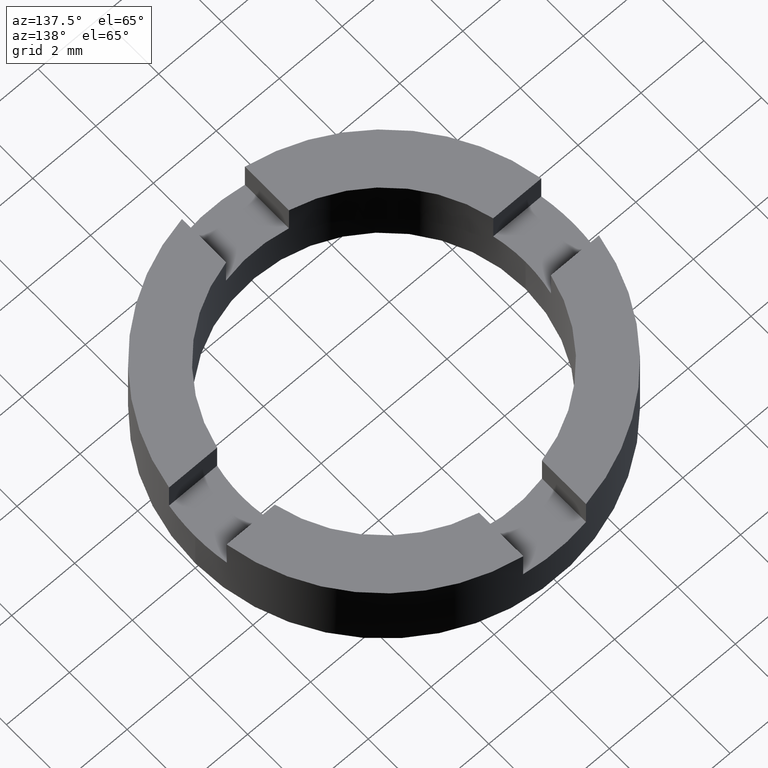
[diagram: clean part render]
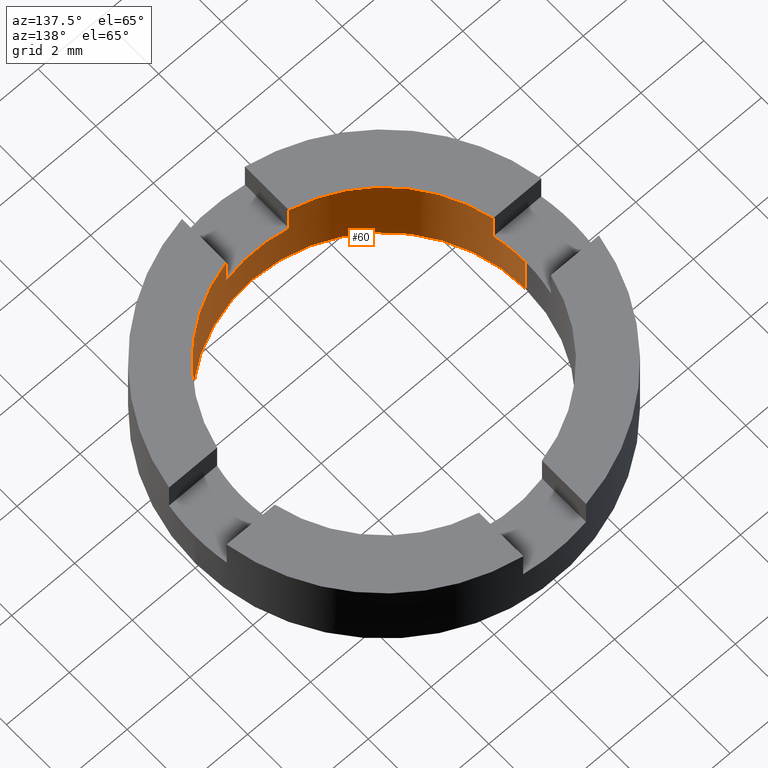
[diagram: same view with one face highlighted and labeled with its STEP entity id]
A machine part, auxiliary view. The second image highlights one B-rep face of the part: STEP entity #60.
In plain terms, the highlighted cylindrical surface (partial cylindrical patch) has radius 4.5 mm, axis along (-0, -0, -1).
Its self-contained STEP definition (entity closure, byte-faithful):
#3 = ORIENTED_EDGE ( 'NONE', *, *, #92, .F. ) ;
#7 = CARTESIAN_POINT ( 'NONE',  ( -4.500000000000000000, 0.000000000000000000, 1.500000000000000000 ) ) ;
#16 = DIRECTION ( 'NONE',  ( 0.000000000000000000, 0.000000000000000000, 1.000000000000000000 ) ) ;
#32 = EDGE_CURVE ( 'NONE', #618, #647, #751, .T. ) ;
#43 = VERTEX_POINT ( 'NONE', #605 ) ;
#46 = CARTESIAN_POINT ( 'NONE',  ( -0.9999999999999986677, -4.387482193696060406, 1.500000000000000000 ) ) ;
#57 = EDGE_CURVE ( 'NONE', #355, #654, #502, .T. ) ;
#60 = ADVANCED_FACE ( 'NONE', ( #532 ), #512, .F. ) ;
#72 = LINE ( 'NONE', #424, #365 ) ;
#85 = ORIENTED_EDGE ( 'NONE', *, *, #112, .T. ) ;
#92 = EDGE_CURVE ( 'NONE', #497, #537, #763, .T. ) ;
#96 = ORIENTED_EDGE ( 'NONE', *, *, #196, .T. ) ;
#98 = ORIENTED_EDGE ( 'NONE', *, *, #720, .F. ) ;
#109 = ORIENTED_EDGE ( 'NONE', *, *, #146, .F. ) ;
#112 = EDGE_CURVE ( 'NONE', #124, #647, #500, .T. ) ;
#120 = EDGE_LOOP ( 'NONE', ( #98, #305, #312, #630, #3, #261, #85, #290, #553, #202, #96, #109 ) ) ;
#121 = CARTESIAN_POINT ( 'NONE',  ( 4.500000000000000000, 5.510910596163088569E-16, 1.500000000000000000 ) ) ;
#124 = VERTEX_POINT ( 'NONE', #659 ) ;
#134 = EDGE_CURVE ( 'NONE', #43, #654, #771, .T. ) ;
#135 = CARTESIAN_POINT ( 'NONE',  ( -0.9999999999999986677, -4.387482193696060406, 1.500000000000000000 ) ) ;
#136 = DIRECTION ( 'NONE',  ( 0.000000000000000000, -0.000000000000000000, -1.000000000000000000 ) ) ;
#146 = EDGE_CURVE ( 'NONE', #523, #739, #777, .T. ) ;
#167 = DIRECTION ( 'NONE',  ( 0.000000000000000000, 0.000000000000000000, 1.000000000000000000 ) ) ;
#169 = DIRECTION ( 'NONE',  ( 1.000000000000000000, 0.000000000000000000, 0.000000000000000000 ) ) ;
#171 = CARTESIAN_POINT ( 'NONE',  ( 4.387482193696056854, -1.000000000000017319, 2.500000000000000000 ) ) ;
#177 = DIRECTION ( 'NONE',  ( 0.000000000000000000, -0.000000000000000000, -1.000000000000000000 ) ) ;
#180 = EDGE_CURVE ( 'NONE', #568, #637, #522, .T. ) ;
#188 = CARTESIAN_POINT ( 'NONE',  ( 0.000000000000000000, 0.000000000000000000, 1.500000000000000000 ) ) ;
#196 = EDGE_CURVE ( 'NONE', #637, #739, #507, .T. ) ;
#198 = EDGE_CURVE ( 'NONE', #497, #124, #779, .T. ) ;
#202 = ORIENTED_EDGE ( 'NONE', *, *, #180, .T. ) ;
#214 = VECTOR ( 'NONE', #521, 1000.000000000000000 ) ;
#236 = VECTOR ( 'NONE', #685, 1000.000000000000000 ) ;
#237 = VECTOR ( 'NONE', #361, 1000.000000000000000 ) ;
#238 = CARTESIAN_POINT ( 'NONE',  ( 4.387482193696056854, -1.000000000000017319, 1.500000000000000000 ) ) ;
#261 = ORIENTED_EDGE ( 'NONE', *, *, #198, .T. ) ;
#263 = CARTESIAN_POINT ( 'NONE',  ( 0.000000000000000000, 0.000000000000000000, 2.500000000000000000 ) ) ;
#290 = ORIENTED_EDGE ( 'NONE', *, *, #32, .F. ) ;
#300 = CARTESIAN_POINT ( 'NONE',  ( 0.000000000000000000, 0.000000000000000000, 2.500000000000000000 ) ) ;
#305 = ORIENTED_EDGE ( 'NONE', *, *, #57, .T. ) ;
#311 = CARTESIAN_POINT ( 'NONE',  ( 0.000000000000000000, 0.000000000000000000, 1.500000000000000000 ) ) ;
#312 = ORIENTED_EDGE ( 'NONE', *, *, #134, .F. ) ;
#317 = AXIS2_PLACEMENT_3D ( 'NONE', #300, #167, #383 ) ;
#322 = DIRECTION ( 'NONE',  ( 1.000000000000000000, 0.000000000000000000, 0.000000000000000000 ) ) ;
#355 = VERTEX_POINT ( 'NONE', #121 ) ;
#360 = DIRECTION ( 'NONE',  ( -0.000000000000000000, -0.000000000000000000, 1.000000000000000000 ) ) ;
#361 = DIRECTION ( 'NONE',  ( -0.000000000000000000, -0.000000000000000000, -1.000000000000000000 ) ) ;
#365 = VECTOR ( 'NONE', #463, 1000.000000000000000 ) ;
#383 = DIRECTION ( 'NONE',  ( 1.000000000000000000, 0.000000000000000000, 0.000000000000000000 ) ) ;
#420 = CARTESIAN_POINT ( 'NONE',  ( -0.9999999999999986677, -4.387482193696060406, 2.500000000000000000 ) ) ;
#422 = CARTESIAN_POINT ( 'NONE',  ( -4.387482193696063071, -0.9999999999999847899, 1.500000000000000000 ) ) ;
#423 = DIRECTION ( 'NONE',  ( -0.000000000000000000, -0.000000000000000000, -1.000000000000000000 ) ) ;
#424 = CARTESIAN_POINT ( 'NONE',  ( -4.500000000000000000, 0.000000000000000000, 2.500000000000000000 ) ) ;
#430 = CARTESIAN_POINT ( 'NONE',  ( 4.500000000000000000, 5.510910596163088569E-16, 2.500000000000000000 ) ) ;
#434 = DIRECTION ( 'NONE',  ( 1.000000000000000000, 0.000000000000000000, 0.000000000000000000 ) ) ;
#447 = EDGE_CURVE ( 'NONE', #537, #43, #72, .T. ) ;
#450 = DIRECTION ( 'NONE',  ( 1.000000000000000000, 0.000000000000000000, 0.000000000000000000 ) ) ;
#456 = CARTESIAN_POINT ( 'NONE',  ( 4.500000000000000000, 5.510910596163088569E-16, 0.000000000000000000 ) ) ;
#463 = DIRECTION ( 'NONE',  ( -0.000000000000000000, -0.000000000000000000, -1.000000000000000000 ) ) ;
#475 = DIRECTION ( 'NONE',  ( 0.000000000000000000, -0.000000000000000000, -1.000000000000000000 ) ) ;
#481 = CARTESIAN_POINT ( 'NONE',  ( 0.000000000000000000, 0.000000000000000000, 0.000000000000000000 ) ) ;
#497 = VERTEX_POINT ( 'NONE', #662 ) ;
#500 = CIRCLE ( 'NONE', #585, 4.500000000000000000 ) ;
#502 = LINE ( 'NONE', #430, #237 ) ;
#507 = CIRCLE ( 'NONE', #317, 4.500000000000000000 ) ;
#511 = CARTESIAN_POINT ( 'NONE',  ( 1.000000000000001332, -4.387482193696059518, 2.500000000000000000 ) ) ;
#512 = CYLINDRICAL_SURFACE ( 'NONE', #716, 4.500000000000000000 ) ;
#514 = VECTOR ( 'NONE', #703, 1000.000000000000000 ) ;
#521 = DIRECTION ( 'NONE',  ( -0.000000000000000000, -0.000000000000000000, 1.000000000000000000 ) ) ;
#522 = LINE ( 'NONE', #594, #746 ) ;
#523 = VERTEX_POINT ( 'NONE', #726 ) ;
#526 = DIRECTION ( 'NONE',  ( -1.000000000000000000, 0.000000000000000000, 0.000000000000000000 ) ) ;
#532 = FACE_OUTER_BOUND ( 'NONE', #120, .T. ) ;
#537 = VERTEX_POINT ( 'NONE', #7 ) ;
#544 = AXIS2_PLACEMENT_3D ( 'NONE', #311, #475, #169 ) ;
#553 = ORIENTED_EDGE ( 'NONE', *, *, #682, .F. ) ;
#568 = VERTEX_POINT ( 'NONE', #591 ) ;
#585 = AXIS2_PLACEMENT_3D ( 'NONE', #263, #699, #322 ) ;
#591 = CARTESIAN_POINT ( 'NONE',  ( 1.000000000000001332, -4.387482193696059518, 1.500000000000000000 ) ) ;
#594 = CARTESIAN_POINT ( 'NONE',  ( 1.000000000000001332, -4.387482193696059518, 1.500000000000000000 ) ) ;
#602 = CIRCLE ( 'NONE', #714, 4.500000000000000000 ) ;
#605 = CARTESIAN_POINT ( 'NONE',  ( -4.500000000000000000, 0.000000000000000000, 0.000000000000000000 ) ) ;
#615 = CARTESIAN_POINT ( 'NONE',  ( 0.000000000000000000, 0.000000000000000000, 2.500000000000000000 ) ) ;
#618 = VERTEX_POINT ( 'NONE', #46 ) ;
#620 = CIRCLE ( 'NONE', #544, 4.500000000000000000 ) ;
#626 = AXIS2_PLACEMENT_3D ( 'NONE', #188, #177, #665 ) ;
#630 = ORIENTED_EDGE ( 'NONE', *, *, #447, .F. ) ;
#637 = VERTEX_POINT ( 'NONE', #511 ) ;
#647 = VERTEX_POINT ( 'NONE', #420 ) ;
#654 = VERTEX_POINT ( 'NONE', #456 ) ;
#659 = CARTESIAN_POINT ( 'NONE',  ( -4.387482193696063071, -0.9999999999999847899, 2.500000000000000000 ) ) ;
#662 = CARTESIAN_POINT ( 'NONE',  ( -4.387482193696063959, -0.9999999999999850120, 1.500000000000000000 ) ) ;
#665 = DIRECTION ( 'NONE',  ( 1.000000000000000000, 0.000000000000000000, 0.000000000000000000 ) ) ;
#682 = EDGE_CURVE ( 'NONE', #568, #618, #620, .T. ) ;
#685 = DIRECTION ( 'NONE',  ( -0.000000000000000000, -0.000000000000000000, 1.000000000000000000 ) ) ;
#691 = CARTESIAN_POINT ( 'NONE',  ( 0.000000000000000000, 0.000000000000000000, 1.500000000000000000 ) ) ;
#699 = DIRECTION ( 'NONE',  ( 0.000000000000000000, 0.000000000000000000, 1.000000000000000000 ) ) ;
#703 = DIRECTION ( 'NONE',  ( -0.000000000000000000, -0.000000000000000000, 1.000000000000000000 ) ) ;
#712 = AXIS2_PLACEMENT_3D ( 'NONE', #481, #16, #450 ) ;
#714 = AXIS2_PLACEMENT_3D ( 'NONE', #691, #136, #434 ) ;
#716 = AXIS2_PLACEMENT_3D ( 'NONE', #615, #423, #526 ) ;
#720 = EDGE_CURVE ( 'NONE', #355, #523, #602, .T. ) ;
#726 = CARTESIAN_POINT ( 'NONE',  ( 4.387482193696056854, -1.000000000000017319, 1.500000000000000000 ) ) ;
#739 = VERTEX_POINT ( 'NONE', #171 ) ;
#746 = VECTOR ( 'NONE', #360, 1000.000000000000000 ) ;
#751 = LINE ( 'NONE', #135, #236 ) ;
#763 = CIRCLE ( 'NONE', #626, 4.500000000000000000 ) ;
#771 = CIRCLE ( 'NONE', #712, 4.500000000000000000 ) ;
#777 = LINE ( 'NONE', #238, #514 ) ;
#779 = LINE ( 'NONE', #422, #214 ) ;